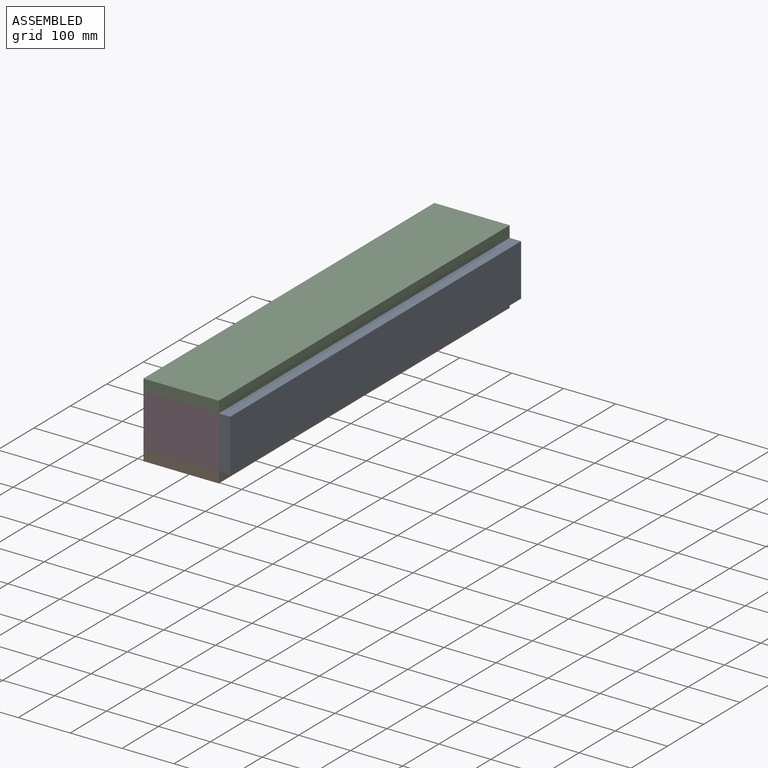
[diagram: assembled view]
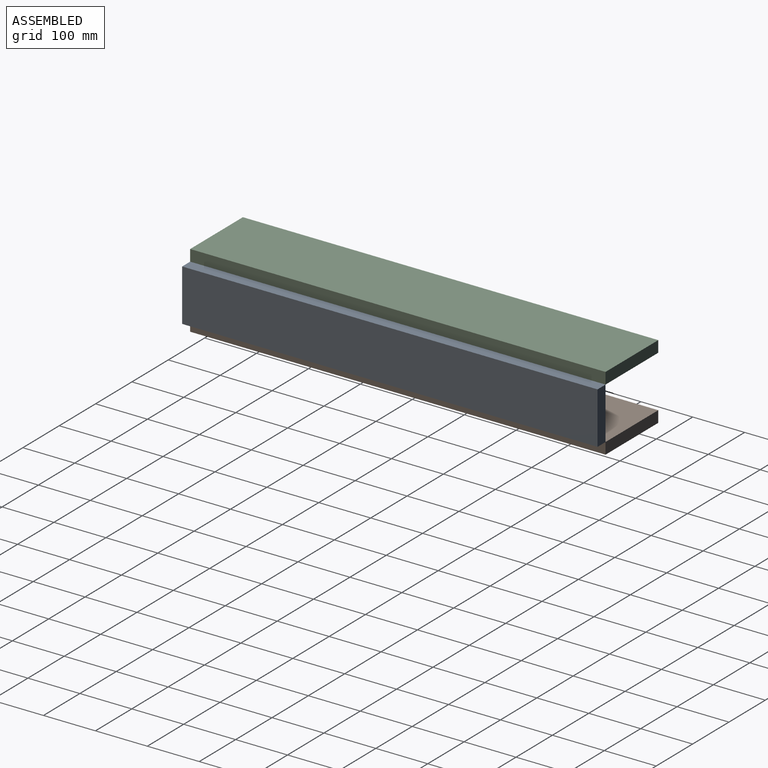
[diagram: assembled view, second angle]
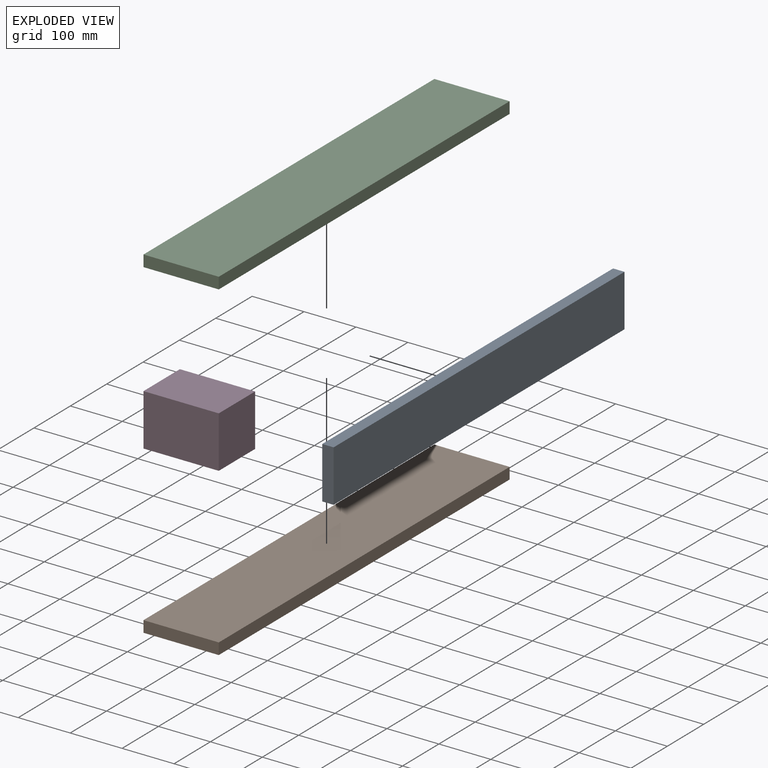
[diagram: exploded view]
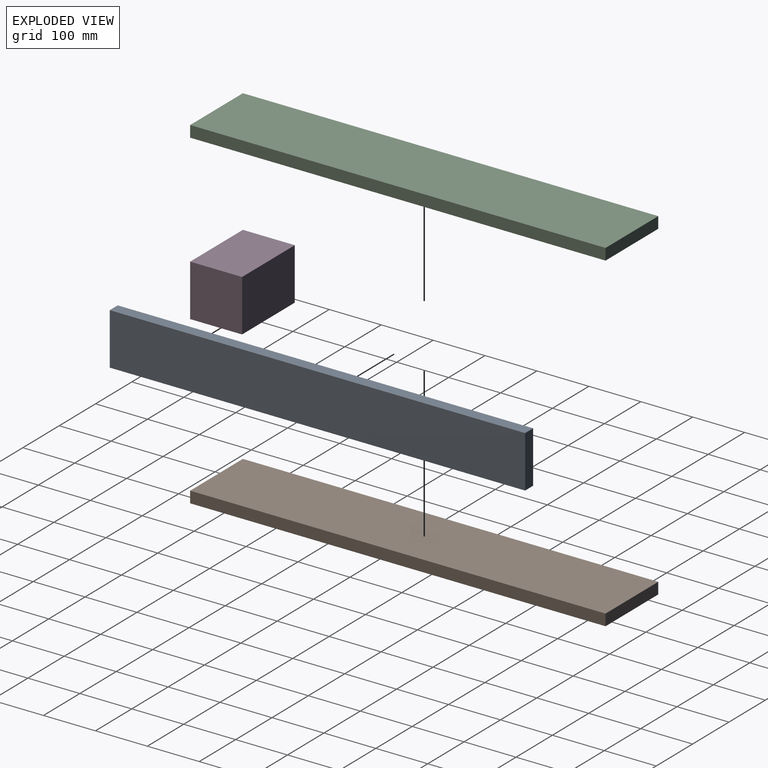
[diagram: exploded view, second angle]
ASSEMBLY  parts=4 mates=3
PART A: 6 faces, bbox 100x800x22 mm
  f0: plane 800x22mm, normal (-1,0,0), area 17600mm2, adj f1,f3,f4,f5
  f1: plane 800x100mm, normal (0,0,-1), area 80000mm2, adj f0,f2,f4,f5
  f2: plane 800x22mm, normal (1,0,0), area 17600mm2, adj f1,f3,f4,f5
  f3: plane 800x100mm, normal (0,0,1), area 80000mm2, adj f0,f2,f4,f5
  f4: plane 100x22mm, normal (0,1,0), area 2200mm2, adj f0,f1,f2,f3
  f5: plane 100x22mm, normal (0,-1,0), area 2200mm2, adj f0,f1,f2,f3
PART B: 6 faces, bbox 145x800x22 mm
  f0: plane 800x22mm, normal (-1,0,0), area 17600mm2, adj f1,f3,f4,f5
  f1: plane 800x145mm, normal (0,0,-1), area 116000mm2, adj f0,f2,f4,f5
  f2: plane 800x22mm, normal (1,0,0), area 17600mm2, adj f1,f3,f4,f5
  f3: plane 800x145mm, normal (0,0,1), area 116000mm2, adj f0,f2,f4,f5
  f4: plane 145x22mm, normal (0,1,0), area 3190mm2, adj f0,f1,f2,f3
  f5: plane 145x22mm, normal (0,-1,0), area 3190mm2, adj f0,f1,f2,f3
PART C: same geometry as B
PART D: 6 faces, bbox 145x100x100 mm
  f0: plane 100x100mm, normal (-1,0,0), area 10000mm2, adj f1,f3,f4,f5
  f1: plane 145x100mm, normal (0,0,-1), area 14500mm2, adj f0,f2,f4,f5
  f2: plane 100x100mm, normal (1,0,0), area 10000mm2, adj f1,f3,f4,f5
  f3: plane 145x100mm, normal (0,0,1), area 14500mm2, adj f0,f2,f4,f5
  f4: plane 145x100mm, normal (0,1,0), area 14500mm2, adj f0,f1,f2,f3
  f5: plane 145x100mm, normal (0,-1,0), area 14500mm2, adj f0,f1,f2,f3
PLACE A rot(axis=(0,-1,0),90deg) t=(245.37,-249.2,187.7)mm
PLACE B t=(157.23,-249.2,121.29)mm
PLACE C t=(157.23,-249.2,243.29)mm
PLACE D t=(164.4,-249.2,162.3)mm
MATE fastened D.f2 <-> A.f3  axis (1,0,0) through (240.6,-249.2,126.07)mm
MATE fastened D.f3 <-> C.f1  axis (0,0,1) through (95.6,-249.2,226.07)mm
MATE fastened D.f1 <-> B.f3  axis (0,0,-1) through (240.6,-249.2,126.07)mm
